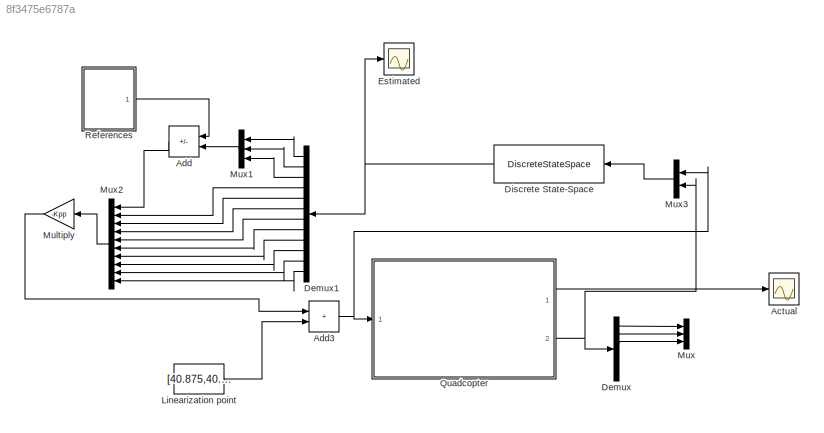
MODEL slx_8f3475e6787a
KIND model
CONFIG AbsTol = auto
CONFIG EnableMultiTasking = on
CONFIG FixedStep = auto
CONFIG MaxStep = auto
CONFIG MinStep = auto
CONFIG RelTol = 1e-6
CONFIG SampleTimeConstraint = Unconstrained
CONFIG SolverName = ode45
CONFIG StartTime = 0.0
CONFIG StopTime = Tmax
BLOCK [Scope] Actual
  Floating = off
  NumInputPorts = 1
  Ports = [1]
  ScopeSpecificationString = Simulink.scopes.TimeScopeBlockCfg('CurrentConfiguration', extmgr.ConfigurationSet(extmgr.Configuration('Core','General UI',true),extmgr.Configuration('Core','Source UI',true),extmgr.Configuration('Sources','WiredSimulink',true,'DataLoggingVariableName','ScopeData1'),extmgr.Configuration('Visuals','Time Domain',true,'SerializedDisplays',{struct('MinYLimReal','-6.59834','MaxYLimReal','5.23444','YLab...<+1623ch>
BLOCK [Sum] Add
  IconShape = rectangular
  Inputs = -+
  Ports = [2, 1]
BLOCK [Sum] Add3
  IconShape = rectangular
  Ports = [2, 1]
BLOCK [Demux] Demux
  Outputs = 6
  Ports = [1, 6]
BLOCK [Demux] Demux1
  Outputs = 12
  Ports = [1, 12]
BLOCK [DiscreteStateSpace] Discrete State-Space
  A = Ac2
  B = Bc2
  C = Cc2
  D = Dc2
  SampleTime = 0.05
BLOCK [Scope] Estimated
  Floating = off
  NumInputPorts = 1
  Ports = [1]
  ScopeSpecificationString = Simulink.scopes.TimeScopeBlockCfg('CurrentConfiguration', extmgr.ConfigurationSet(extmgr.Configuration('Core','General UI',true),extmgr.Configuration('Core','Source UI',true),extmgr.Configuration('Sources','WiredSimulink',true),extmgr.Configuration('Visuals','Time Domain',true,'SerializedDisplays',{struct('MinYLimReal','-6.59424','MaxYLimReal','5.262','YLabelReal','','MinYLimMag','0.00000','MaxYLi...<+1670ch>
BLOCK [Constant] Linearization point
  SampleTime = 0.05
  Value = [40.875,40.875,40.875,40.875]
BLOCK [Gain] Multiply
  Gain = -Kpp
  Multiplication = Matrix(K*u)
BLOCK [Mux] Mux
  DisplayOption = bar
  Inputs = 3
  Ports = [3, 1]
BLOCK [Mux] Mux1
  DisplayOption = bar
  Inputs = 3
  Ports = [3, 1]
BLOCK [Mux] Mux2
  DisplayOption = bar
  Inputs = 10
  Ports = [10, 1]
BLOCK [Mux] Mux3
  DisplayOption = bar
  Inputs = 2
  Ports = [2, 1]
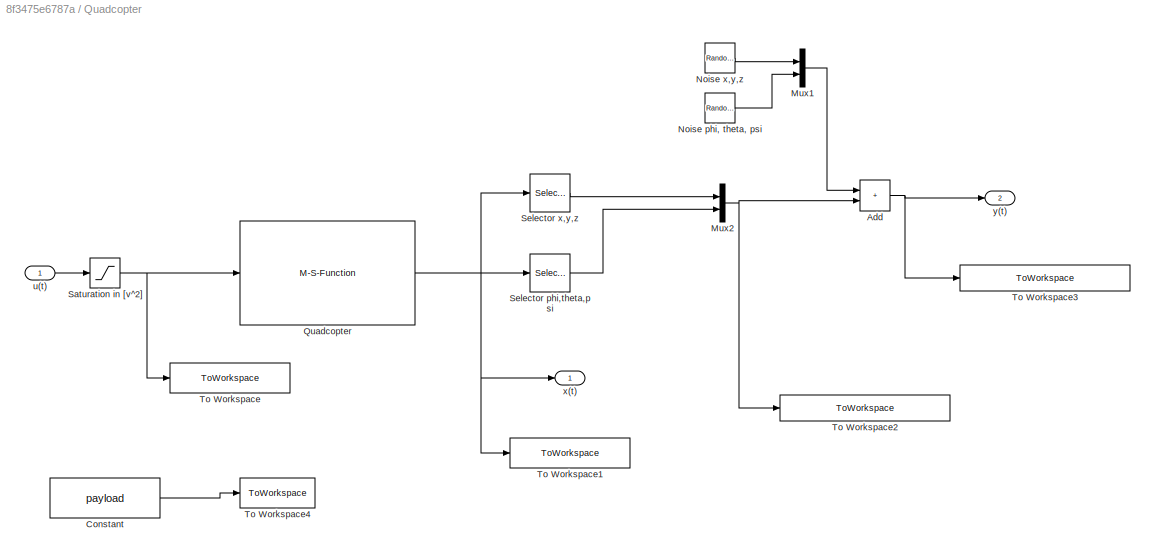
BLOCK [SubSystem] Quadcopter
  Ports = [1, 2]
  RequestExecContextInheritance = off
BLOCK [Sum] Quadcopter/Add
  IconShape = rectangular
  Ports = [2, 1]
BLOCK [Constant] Quadcopter/Constant
  Value = payload
BLOCK [Mux] Quadcopter/Mux1
  DisplayOption = bar
  Inputs = 2
  Ports = [2, 1]
BLOCK [Mux] Quadcopter/Mux2
  DisplayOption = bar
  Inputs = 2
  Ports = [2, 1]
BLOCK [RandomNumber] Quadcopter/Noise  x,y,z
  SampleTime = 0.05
  Variance = [1 1 1]*(0.005)^2
BLOCK [RandomNumber] Quadcopter/Noise phi, theta, psi
  SampleTime = 0.05
  Variance = [1 1 1]*(0.0087)^2
BLOCK [M-S-Function] Quadcopter/Quadcopter
  FunctionName = quadcopter_sfunction
  Parameters = x0, payload
  Ports = [1, 1]
BLOCK [Saturate] Quadcopter/Saturation in [v^2]
  LowerLimit = 0
  UpperLimit = 100
BLOCK [Selector] Quadcopter/Selector phi,theta,psi
  IndexOptions = Index vector (dialog)
  Indices = [7 8 9]
  OutputSizes = 1
  Ports = [1, 1]
BLOCK [Selector] Quadcopter/Selector x,y,z
  IndexOptions = Index vector (dialog)
  Indices = [1 2 3]
  OutputSizes = 1
  Ports = [1, 1]
BLOCK [ToWorkspace] Quadcopter/To Workspace
  MaxDataPoints = inf
  Ports = [1]
  SampleTime = -1
  SaveFormat = Structure With Time
  VariableName = inputs_quadcopter
BLOCK [ToWorkspace] Quadcopter/To Workspace1
  MaxDataPoints = inf
  Ports = [1]
  SampleTime = -1
  SaveFormat = Structure With Time
  VariableName = states_quadcopter
BLOCK [ToWorkspace] Quadcopter/To Workspace2
  MaxDataPoints = inf
  Ports = [1]
  SampleTime = -1
  SaveFormat = Structure With Time
  VariableName = outputs_quadcopter_nonoise
BLOCK [ToWorkspace] Quadcopter/To Workspace3
  MaxDataPoints = inf
  Ports = [1]
  SampleTime = -1
  SaveFormat = Structure With Time
  VariableName = outputs_quadcopter_noise
BLOCK [ToWorkspace] Quadcopter/To Workspace4
  MaxDataPoints = inf
  Ports = [1]
  SampleTime = -1
  VariableName = payload_quadcopter
BLOCK [Inport] Quadcopter/u(t)
BLOCK [Outport] Quadcopter/x(t)
BLOCK [Outport] Quadcopter/y(t)
  Port = 2
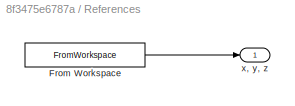
BLOCK [SubSystem] References
  Ports = [0, 1]
  RequestExecContextInheritance = off
BLOCK [FromWorkspace] References/From Workspace
  Interpolate = off
  OutputAfterFinalValue = Holding final value
  SampleTime = 0.1
  VariableName = references
BLOCK [Outport] References/x, y, z
NET Add3:1 -> Mux3:1, Quadcopter:1
LINE Add:1 -> Mux2:1
LINE Demux1:1 -> Mux1:1
LINE Demux1:10 -> Mux2:8
LINE Demux1:11 -> Mux2:9
LINE Demux1:12 -> Mux2:10
LINE Demux1:2 -> Mux1:2
LINE Demux1:3 -> Mux1:3
LINE Demux1:4 -> Mux2:2
LINE Demux1:5 -> Mux2:3
LINE Demux1:6 -> Mux2:4
LINE Demux1:7 -> Mux2:5
LINE Demux1:8 -> Mux2:6
LINE Demux1:9 -> Mux2:7
LINE Demux:1 -> Mux:1
LINE Demux:2 -> Mux:2
LINE Demux:3 -> Mux:3
NET Discrete State-Space:1 -> Demux1:1, Estimated:1
LINE Linearization point:1 -> Add3:2
LINE Multiply:1 -> Add3:1
LINE Mux1:1 -> Add:2
LINE Mux2:1 -> Multiply:1
LINE Mux3:1 -> Discrete State-Space:1
NET Quadcopter/Add:1 -> Quadcopter/To Workspace3:1, Quadcopter/y(t):1
LINE Quadcopter/Constant:1 -> Quadcopter/To Workspace4:1
LINE Quadcopter/Mux1:1 -> Quadcopter/Add:1
NET Quadcopter/Mux2:1 -> Quadcopter/Add:2, Quadcopter/To Workspace2:1
LINE Quadcopter/Noise  x,y,z:1 -> Quadcopter/Mux1:1
LINE Quadcopter/Noise phi, theta, psi:1 -> Quadcopter/Mux1:2
NET Quadcopter/Quadcopter:1 -> Quadcopter/Selector phi,theta,psi:1, Quadcopter/Selector x,y,z:1, Quadcopter/To Workspace1:1, Quadcopter/x(t):1
NET Quadcopter/Saturation in [v^2]:1 -> Quadcopter/Quadcopter:1, Quadcopter/To Workspace:1
LINE Quadcopter/Selector phi,theta,psi:1 -> Quadcopter/Mux2:2
LINE Quadcopter/Selector x,y,z:1 -> Quadcopter/Mux2:1
LINE Quadcopter/u(t):1 -> Quadcopter/Saturation in [v^2]:1
LINE Quadcopter:1 -> Actual:1
NET Quadcopter:2 -> Demux:1, Mux3:2
LINE References/From Workspace:1 -> References/x, y, z:1
LINE References:1 -> Add:1
note: NET lines group one-source signal fan-out (src -> all destinations, sorted); 1:1 wires keep LINE
